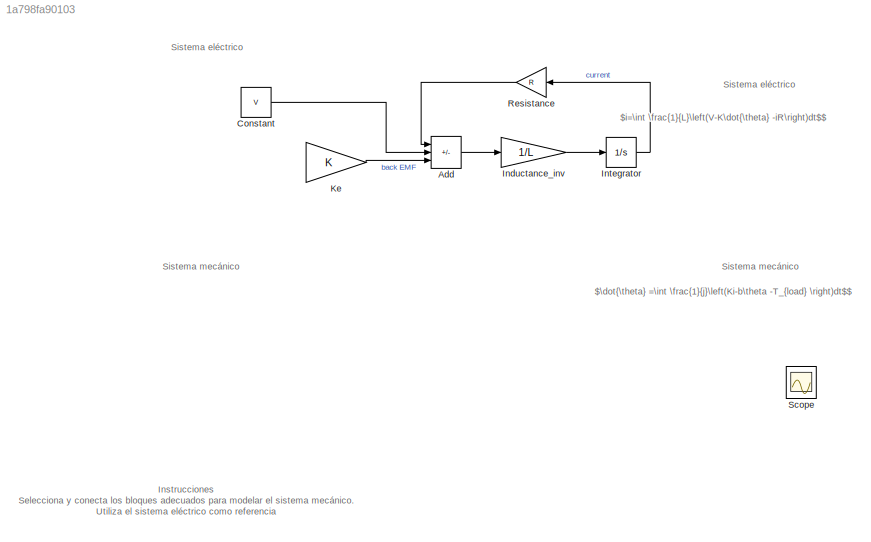
MODEL slx_1a798fa90103
KIND model
CONFIG AbsTol = auto
CONFIG EnableMultiTasking = off
CONFIG FixedStep = auto
CONFIG MaxStep = auto
CONFIG MinStep = auto
CONFIG PreLoadFcn = load properties.mat
CONFIG RelTol = 1e-3
CONFIG SampleTimeConstraint = Unconstrained
CONFIG SolverName = VariableStepAuto
CONFIG StartTime = 0.0
CONFIG StopTime = 10.0
BLOCK [Sum] Add
  IconShape = rectangular
  Inputs = -+-
BLOCK [Constant] Constant
  Value = V
BLOCK [Gain] Inductance_inv
  Gain = 1/L
BLOCK [Integrator] Integrator
BLOCK [Gain] Ke
  Gain = K
BLOCK [Gain] Resistance
  Gain = R
BLOCK [Scope] Scope
  Floating = off
  NumInputPorts = 1
  ScopeSpecificationString = Simulink.scopes.TimeScopeBlockCfg('CurrentConfiguration', extmgr.ConfigurationSet(extmgr.Configuration('Core','General UI',true,'FigureColor',[0.129411764705882 0.129411764705882 0.129411764705882]),extmgr.Configuration('Core','Source UI',true),extmgr.Configuration('Sources','WiredSimulink',true),extmgr.Configuration('Visuals','Time Domain',true,'SerializedDisplays',{struct('MinYLimReal','-1.36364...<+1766ch>
ANNOTATION (root): Instrucciones Selecciona y conecta los bloques adecuados para modelar el sistema mecánico. Utiliza el sistema eléctrico como referencia
ANNOTATION (root): Sistema eléctrico
ANNOTATION (root): Sistema mecánico
ANNOTATION (root): $\dot{\theta} =\int \frac{1}{j}\left(Ki-b\theta -T_{load} \right)dt$$
ANNOTATION (root): $i=\int \frac{1}{L}\left(V-K\dot{\theta} -iR\right)dt$$
LINE Add:1 -> Inductance_inv:1
LINE Constant:1 -> Add:2
LINE Inductance_inv:1 -> Integrator:1
LINE Integrator:1 -> Resistance:1
LINE Ke:1 -> Add:3
LINE Resistance:1 -> Add:1
